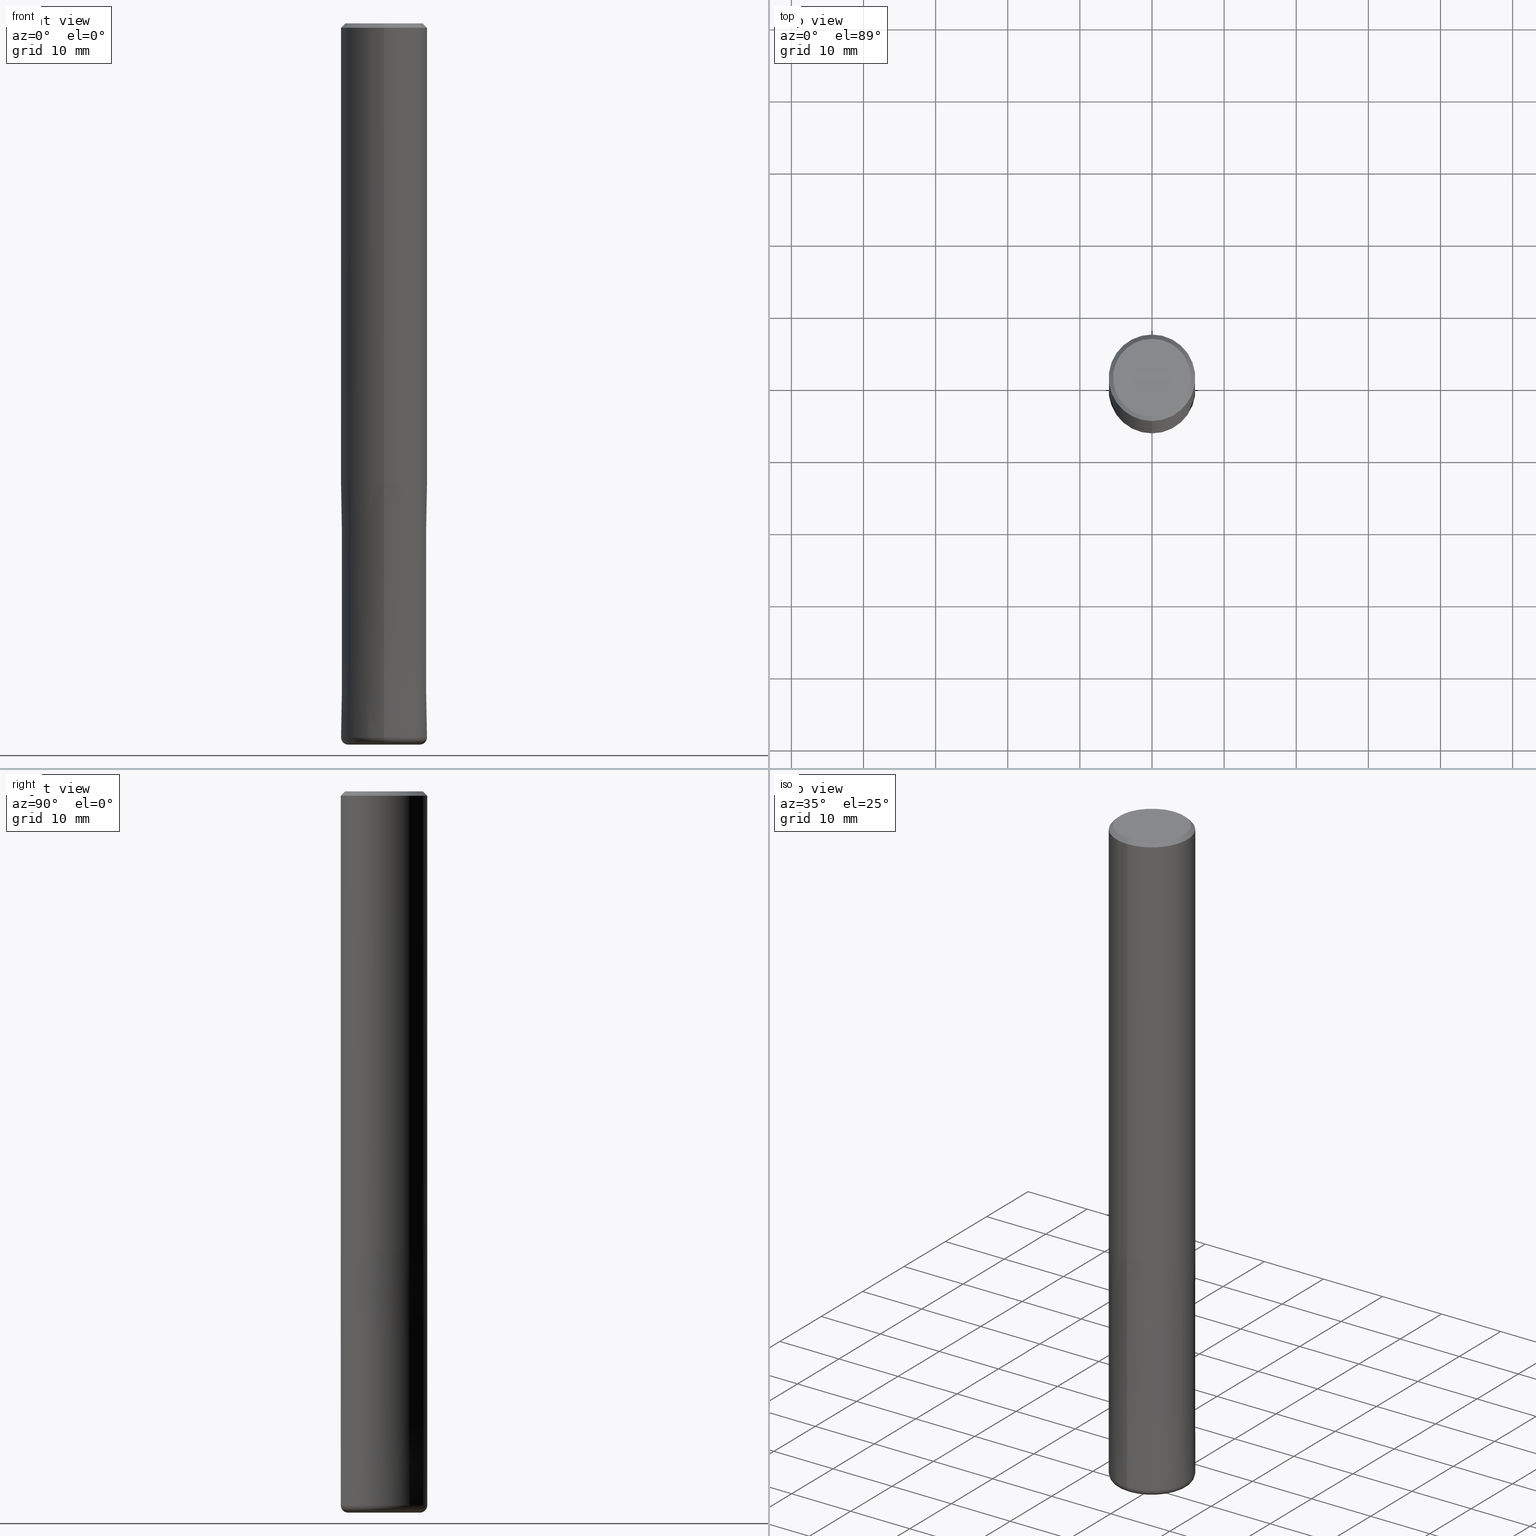
[diagram: canonical four-view strip — front | top / right | iso, engineering-drawing reading convention]
A machine part, canonical four-view strip (front | top / right | iso — engineering-drawing reading convention). The complete STEP part file that produces these views, byte-faithful:
ISO-10303-21;
HEADER;
FILE_DESCRIPTION(('no description'),'unknown implementation level');
FILE_NAME('CXRS5120-10-3600-Huellk.stp','  ',('CIMSOURCE GmbH'),('CADClick - KiM GmbH - www.kimweb.de'),'unknown preprocess','ACIS','unknown authorization');
FILE_SCHEMA(('automotive_design'));
ENDSEC;
DATA;
#1=MECHANICAL_DESIGN_GEOMETRIC_PRESENTATION_REPRESENTATION(' ',(#14,#15,#16,#17,#18,#19,#20,#21,#22,#23,#24,#25,#26,#27,#28,#29,#30,#31,#32,#33,#34,#35,#36,#37,#38,#39,#40,#41,#42,#43,#44,#45,#46,#47,#48,#49,#50,#51,#52,#53,#54,#55,#56,#57,#58,#59,#60,#61,#62,#63,#64,#65,#66,#67,#68,#69,#70,#71,#72,#73,#74,#75,#76,#77,#78,#79,#80,#81,#82,#83,#84),#10);
#2=PRODUCT_DEFINITION_CONTEXT('',#85,'design');
#3=APPLICATION_PROTOCOL_DEFINITION('INTERNATIONAL STANDARD','automotive_design',1994,#85);
#4=PRODUCT_CATEGORY_RELATIONSHIP('NONE','NONE',#86,#87);
#5=SHAPE_DEFINITION_REPRESENTATION(#88,#89);
#6=PRODUCT_DEFINITION_CONTEXT('',#90,'design');
#7=APPLICATION_PROTOCOL_DEFINITION('INTERNATIONAL STANDARD','automotive_design',1994,#90);
#8=PRODUCT_CATEGORY_RELATIONSHIP('NONE','NONE',#91,#92);
#9=SHAPE_DEFINITION_REPRESENTATION(#93,#94);
#10= (GEOMETRIC_REPRESENTATION_CONTEXT(3)GLOBAL_UNCERTAINTY_ASSIGNED_CONTEXT((#97))GLOBAL_UNIT_ASSIGNED_CONTEXT((#99,#100,#101))REPRESENTATION_CONTEXT('NONE','WORKSPACE'));
#14=STYLED_ITEM('',(#103),#104);
#15=STYLED_ITEM('',(#105),#106);
#16=STYLED_ITEM('',(#107),#108);
#17=STYLED_ITEM('',(#109),#110);
#18=STYLED_ITEM('',(#111),#112);
#19=STYLED_ITEM('',(#113),#114);
#20=STYLED_ITEM('',(#115),#116);
#21=STYLED_ITEM('',(#117),#118);
#22=STYLED_ITEM('',(#119),#120);
#23=STYLED_ITEM('',(#121),#122);
#24=STYLED_ITEM('',(#123),#124);
#25=STYLED_ITEM('',(#125),#126);
#26=STYLED_ITEM('',(#127),#128);
#27=STYLED_ITEM('',(#129),#130);
#28=STYLED_ITEM('',(#131),#132);
#29=STYLED_ITEM('',(#133),#134);
#30=STYLED_ITEM('',(#135),#136);
#31=STYLED_ITEM('',(#137),#138);
#32=STYLED_ITEM('',(#139),#140);
#33=STYLED_ITEM('',(#141),#142);
#34=STYLED_ITEM('',(#143),#144);
#35=STYLED_ITEM('',(#145),#146);
#36=STYLED_ITEM('',(#147),#148);
#37=STYLED_ITEM('',(#149),#150);
#38=STYLED_ITEM('',(#151),#152);
#39=STYLED_ITEM('',(#153),#154);
#40=STYLED_ITEM('',(#155),#156);
#41=STYLED_ITEM('',(#157),#158);
#42=STYLED_ITEM('',(#159),#160);
#43=STYLED_ITEM('',(#161),#162);
#44=STYLED_ITEM('',(#163),#164);
#45=STYLED_ITEM('',(#165),#166);
#46=STYLED_ITEM('',(#167),#168);
#47=STYLED_ITEM('',(#169),#170);
#48=STYLED_ITEM('',(#171),#172);
#49=STYLED_ITEM('',(#173),#174);
#50=STYLED_ITEM('',(#175),#176);
#51=STYLED_ITEM('',(#177),#178);
#52=STYLED_ITEM('',(#179),#180);
#53=STYLED_ITEM('',(#181),#182);
#54=STYLED_ITEM('',(#183),#184);
#55=STYLED_ITEM('',(#185),#186);
#56=STYLED_ITEM('',(#187),#188);
#57=STYLED_ITEM('',(#189),#190);
#58=STYLED_ITEM('',(#191),#192);
#59=STYLED_ITEM('',(#193),#194);
#60=STYLED_ITEM('',(#195),#196);
#61=STYLED_ITEM('',(#197),#198);
#62=STYLED_ITEM('',(#199),#200);
#63=STYLED_ITEM('',(#201),#202);
#64=STYLED_ITEM('',(#203),#204);
#65=STYLED_ITEM('',(#205),#206);
#66=STYLED_ITEM('',(#207),#208);
#67=STYLED_ITEM('',(#209),#210);
#68=STYLED_ITEM('',(#211),#212);
#69=STYLED_ITEM('',(#213),#214);
#70=STYLED_ITEM('',(#215),#216);
#71=STYLED_ITEM('',(#217),#218);
#72=STYLED_ITEM('',(#219),#220);
#73=STYLED_ITEM('',(#221),#222);
#74=STYLED_ITEM('',(#223),#224);
#75=STYLED_ITEM('',(#225),#226);
#76=STYLED_ITEM('',(#227),#228);
#77=STYLED_ITEM('',(#229),#230);
#78=STYLED_ITEM('',(#231),#232);
#79=STYLED_ITEM('',(#233),#234);
#80=STYLED_ITEM('',(#235),#236);
#81=STYLED_ITEM('',(#237),#238);
#82=STYLED_ITEM('',(#239),#240);
#83=STYLED_ITEM('',(#241),#242);
#84=STYLED_ITEM('',(#243),#244);
#85=APPLICATION_CONTEXT(' ');
#86=PRODUCT_CATEGORY('part','NONE');
#87=PRODUCT_RELATED_PRODUCT_CATEGORY('detail',' ',(#245));
#88=PRODUCT_DEFINITION_SHAPE('NONE','NONE',#246);
#89=ADVANCED_BREP_SHAPE_REPRESENTATION('1',(#126,#247),#10);
#90=APPLICATION_CONTEXT(' ');
#91=PRODUCT_CATEGORY('part','NONE');
#92=PRODUCT_RELATED_PRODUCT_CATEGORY('detail',' ',(#248));
#93=PRODUCT_DEFINITION_SHAPE('NONE','NONE',#249);
#94=ADVANCED_BREP_SHAPE_REPRESENTATION('2',(#170,#250),#10);
#97=UNCERTAINTY_MEASURE_WITH_UNIT(LENGTH_MEASURE(1.0E-006),#99,'','');
#99= (CONVERSION_BASED_UNIT('MILLIMETRE',#253)LENGTH_UNIT()NAMED_UNIT(#256));
#100= (NAMED_UNIT(#258)PLANE_ANGLE_UNIT()SI_UNIT($,.RADIAN.));
#101= (NAMED_UNIT(#258)SOLID_ANGLE_UNIT()SI_UNIT($,.STERADIAN.));
#103=PRESENTATION_STYLE_ASSIGNMENT((#264));
#104=EDGE_CURVE('',#108,#152,#265,.T.);
#105=PRESENTATION_STYLE_ASSIGNMENT((#266));
#106=ADVANCED_FACE('',(#267),#268,.T.);
#107=PRESENTATION_STYLE_ASSIGNMENT((#269));
#108=VERTEX_POINT('',#270);
#109=PRESENTATION_STYLE_ASSIGNMENT((#271));
#110=ADVANCED_FACE('',(#272),#273,.T.);
#111=PRESENTATION_STYLE_ASSIGNMENT((#274));
#112=ADVANCED_FACE('',(#275),#276,.T.);
#113=PRESENTATION_STYLE_ASSIGNMENT((#277));
#114=EDGE_CURVE('',#116,#132,#278,.T.);
#115=PRESENTATION_STYLE_ASSIGNMENT((#279));
#116=VERTEX_POINT('',#280);
#117=PRESENTATION_STYLE_ASSIGNMENT((#281));
#118=ADVANCED_FACE('',(#282),#283,.T.);
#119=PRESENTATION_STYLE_ASSIGNMENT((#284));
#120=EDGE_CURVE('',#154,#194,#285,.T.);
#121=PRESENTATION_STYLE_ASSIGNMENT((#286));
#122=ADVANCED_FACE('',(#287),#288,.T.);
#123=PRESENTATION_STYLE_ASSIGNMENT((#289));
#124=ADVANCED_FACE('',(#290),#291,.F.);
#125=PRESENTATION_STYLE_ASSIGNMENT((#292));
#126=MANIFOLD_SOLID_BREP('1',#293);
#127=PRESENTATION_STYLE_ASSIGNMENT((#294));
#128=VERTEX_POINT('',#295);
#129=PRESENTATION_STYLE_ASSIGNMENT((#296));
#130=VERTEX_POINT('',#297);
#131=PRESENTATION_STYLE_ASSIGNMENT((#298));
#132=VERTEX_POINT('',#299);
#133=PRESENTATION_STYLE_ASSIGNMENT((#300));
#134=EDGE_CURVE('',#192,#132,#301,.T.);
#135=PRESENTATION_STYLE_ASSIGNMENT((#302));
#136=ADVANCED_FACE('',(#303),#304,.T.);
#137=PRESENTATION_STYLE_ASSIGNMENT((#305));
#138=EDGE_CURVE('',#184,#210,#306,.T.);
#139=PRESENTATION_STYLE_ASSIGNMENT((#307));
#140=VERTEX_POINT('',#308);
#141=PRESENTATION_STYLE_ASSIGNMENT((#309));
#142=ADVANCED_FACE('',(#310),#311,.T.);
#143=PRESENTATION_STYLE_ASSIGNMENT((#312));
#144=EDGE_CURVE('',#218,#236,#313,.T.);
#145=PRESENTATION_STYLE_ASSIGNMENT((#314));
#146=VERTEX_POINT('',#315);
#147=PRESENTATION_STYLE_ASSIGNMENT((#316));
#148=EDGE_CURVE('',#154,#236,#317,.T.);
#149=PRESENTATION_STYLE_ASSIGNMENT((#318));
#150=EDGE_CURVE('',#178,#212,#319,.T.);
#151=PRESENTATION_STYLE_ASSIGNMENT((#320));
#152=VERTEX_POINT('',#321);
#153=PRESENTATION_STYLE_ASSIGNMENT((#322));
#154=VERTEX_POINT('',#323);
#155=PRESENTATION_STYLE_ASSIGNMENT((#324));
#156=EDGE_CURVE('',#130,#178,#325,.T.);
#157=PRESENTATION_STYLE_ASSIGNMENT((#326));
#158=ADVANCED_FACE('',(#327),#328,.T.);
#159=PRESENTATION_STYLE_ASSIGNMENT((#329));
#160=EDGE_CURVE('',#132,#116,#330,.T.);
#161=PRESENTATION_STYLE_ASSIGNMENT((#331));
#162=ADVANCED_FACE('',(#332,#333),#334,.T.);
#163=PRESENTATION_STYLE_ASSIGNMENT((#335));
#164=EDGE_CURVE('',#230,#130,#336,.T.);
#165=PRESENTATION_STYLE_ASSIGNMENT((#337));
#166=EDGE_CURVE('',#152,#108,#338,.T.);
#167=PRESENTATION_STYLE_ASSIGNMENT((#339));
#168=EDGE_CURVE('',#178,#130,#340,.T.);
#169=PRESENTATION_STYLE_ASSIGNMENT((#341));
#170=MANIFOLD_SOLID_BREP('2',#342);
#171=PRESENTATION_STYLE_ASSIGNMENT((#343));
#172=EDGE_CURVE('',#140,#108,#344,.T.);
#173=PRESENTATION_STYLE_ASSIGNMENT((#345));
#174=ADVANCED_FACE('',(#346),#347,.T.);
#175=PRESENTATION_STYLE_ASSIGNMENT((#348));
#176=EDGE_CURVE('',#236,#184,#349,.T.);
#177=PRESENTATION_STYLE_ASSIGNMENT((#350));
#178=VERTEX_POINT('',#351);
#179=PRESENTATION_STYLE_ASSIGNMENT((#352));
#180=EDGE_CURVE('',#218,#194,#353,.T.);
#181=PRESENTATION_STYLE_ASSIGNMENT((#354));
#182=ADVANCED_FACE('',(#355,#356),#357,.T.);
#183=PRESENTATION_STYLE_ASSIGNMENT((#358));
#184=VERTEX_POINT('',#359);
#185=PRESENTATION_STYLE_ASSIGNMENT((#360));
#186=ADVANCED_FACE('',(#361),#362,.T.);
#187=PRESENTATION_STYLE_ASSIGNMENT((#363));
#188=EDGE_CURVE('',#140,#146,#364,.T.);
#189=PRESENTATION_STYLE_ASSIGNMENT((#365));
#190=VERTEX_POINT('',#366);
#191=PRESENTATION_STYLE_ASSIGNMENT((#367));
#192=VERTEX_POINT('',#368);
#193=PRESENTATION_STYLE_ASSIGNMENT((#369));
#194=VERTEX_POINT('',#370);
#195=PRESENTATION_STYLE_ASSIGNMENT((#371));
#196=EDGE_CURVE('',#190,#128,#372,.T.);
#197=PRESENTATION_STYLE_ASSIGNMENT((#373));
#198=ADVANCED_FACE('',(#374),#375,.T.);
#199=PRESENTATION_STYLE_ASSIGNMENT((#376));
#200=EDGE_CURVE('',#230,#212,#377,.T.);
#201=PRESENTATION_STYLE_ASSIGNMENT((#378));
#202=EDGE_CURVE('',#152,#128,#379,.T.);
#203=PRESENTATION_STYLE_ASSIGNMENT((#380));
#204=EDGE_CURVE('',#210,#218,#381,.T.);
#205=PRESENTATION_STYLE_ASSIGNMENT((#382));
#206=ADVANCED_FACE('',(#383),#384,.F.);
#207=PRESENTATION_STYLE_ASSIGNMENT((#385));
#208=ADVANCED_FACE('',(#386,#387),#388,.T.);
#209=PRESENTATION_STYLE_ASSIGNMENT((#389));
#210=VERTEX_POINT('',#390);
#211=PRESENTATION_STYLE_ASSIGNMENT((#391));
#212=VERTEX_POINT('',#392);
#213=PRESENTATION_STYLE_ASSIGNMENT((#393));
#214=EDGE_CURVE('',#146,#190,#394,.T.);
#215=PRESENTATION_STYLE_ASSIGNMENT((#395));
#216=ADVANCED_FACE('',(#396),#397,.T.);
#217=PRESENTATION_STYLE_ASSIGNMENT((#398));
#218=VERTEX_POINT('',#399);
#219=PRESENTATION_STYLE_ASSIGNMENT((#400));
#220=EDGE_CURVE('',#128,#140,#401,.T.);
#221=PRESENTATION_STYLE_ASSIGNMENT((#402));
#222=EDGE_CURVE('',#224,#192,#403,.T.);
#223=PRESENTATION_STYLE_ASSIGNMENT((#404));
#224=VERTEX_POINT('',#405);
#225=PRESENTATION_STYLE_ASSIGNMENT((#406));
#226=EDGE_CURVE('',#116,#224,#407,.T.);
#227=PRESENTATION_STYLE_ASSIGNMENT((#408));
#228=EDGE_CURVE('',#236,#218,#409,.T.);
#229=PRESENTATION_STYLE_ASSIGNMENT((#410));
#230=VERTEX_POINT('',#411);
#231=PRESENTATION_STYLE_ASSIGNMENT((#412));
#232=EDGE_CURVE('',#192,#224,#413,.T.);
#233=PRESENTATION_STYLE_ASSIGNMENT((#414));
#234=EDGE_CURVE('',#140,#128,#415,.T.);
#235=PRESENTATION_STYLE_ASSIGNMENT((#416));
#236=VERTEX_POINT('',#417);
#237=PRESENTATION_STYLE_ASSIGNMENT((#418));
#238=EDGE_CURVE('',#194,#154,#419,.T.);
#239=PRESENTATION_STYLE_ASSIGNMENT((#420));
#240=EDGE_CURVE('',#190,#146,#421,.T.);
#241=PRESENTATION_STYLE_ASSIGNMENT((#422));
#242=EDGE_CURVE('',#210,#184,#423,.T.);
#243=PRESENTATION_STYLE_ASSIGNMENT((#424));
#244=EDGE_CURVE('',#212,#230,#425,.T.);
#245=PRODUCT('1','1','PART-1-DESC',(#426));
#246=PRODUCT_DEFINITION('NONE','NONE',#427,#2);
#247=AXIS2_PLACEMENT_3D('',#428,#429,#430);
#248=PRODUCT('2','2','PART-2-DESC',(#431));
#249=PRODUCT_DEFINITION('NONE','NONE',#432,#6);
#250=AXIS2_PLACEMENT_3D('',#433,#434,#435);
#253=LENGTH_MEASURE_WITH_UNIT(LENGTH_MEASURE(1.0),#436);
#256=DIMENSIONAL_EXPONENTS(1.0,0.0,0.0,0.0,0.0,0.0,0.0);
#258=DIMENSIONAL_EXPONENTS(0.0,0.0,0.0,0.0,0.0,0.0,0.0);
#264=CURVE_STYLE('',#437,POSITIVE_LENGTH_MEASURE(1.0E-006),#438);
#265=CIRCLE('',#439,5.9999);
#266=SURFACE_STYLE_USAGE(.BOTH.,#440);
#267=FACE_OUTER_BOUND('',#441,.T.);
#268=CONICAL_SURFACE('',#442,5.7,0.785398163397447);
#269=POINT_STYLE(' ',#443,POSITIVE_LENGTH_MEASURE(1.0E-006),#444);
#270=CARTESIAN_POINT('',(7.34751566229888E-016,-5.9999,-64.0));
#271=SURFACE_STYLE_USAGE(.BOTH.,#445);
#272=FACE_OUTER_BOUND('',#446,.T.);
#273=CONICAL_SURFACE('',#447,5.7,0.785398163397447);
#274=SURFACE_STYLE_USAGE(.BOTH.,#448);
#275=FACE_OUTER_BOUND('',#449,.T.);
#276=TOROIDAL_SURFACE('',#450,4.99999999999999,1.00000000000001);
#277=CURVE_STYLE('',#451,POSITIVE_LENGTH_MEASURE(1.0E-006),#452);
#278=CIRCLE('',#453,2.7);
#279=POINT_STYLE(' ',#454,POSITIVE_LENGTH_MEASURE(1.0E-006),#455);
#280=CARTESIAN_POINT('',(0.0,2.7,-64.0));
#281=SURFACE_STYLE_USAGE(.BOTH.,#456);
#282=FACE_OUTER_BOUND('',#457,.T.);
#283=PLANE('',#458);
#284=CURVE_STYLE('',#459,POSITIVE_LENGTH_MEASURE(1.0E-006),#460);
#285=CIRCLE('',#461,5.4);
#286=SURFACE_STYLE_USAGE(.BOTH.,#462);
#287=FACE_OUTER_BOUND('',#463,.T.);
#288=TOROIDAL_SURFACE('',#464,4.99999999999999,1.00000000000001);
#289=SURFACE_STYLE_USAGE(.BOTH.,#465);
#290=FACE_OUTER_BOUND('',#466,.T.);
#291=CYLINDRICAL_SURFACE('',#467,2.7);
#292=SURFACE_STYLE_USAGE(.BOTH.,#468);
#293=CLOSED_SHELL('',(#136,#216,#106,#162,#118,#110,#198,#174,#186));
#294=POINT_STYLE(' ',#469,POSITIVE_LENGTH_MEASURE(1.0E-006),#470);
#295=CARTESIAN_POINT('',(0.0,6.0,-99.0));
#296=POINT_STYLE(' ',#471,POSITIVE_LENGTH_MEASURE(1.0E-006),#472);
#297=CARTESIAN_POINT('',(0.0,2.7,-99.76));
#298=POINT_STYLE(' ',#473,POSITIVE_LENGTH_MEASURE(1.0E-006),#474);
#299=CARTESIAN_POINT('',(3.30643715532042E-016,-2.7,-64.0));
#300=CURVE_STYLE('',#475,POSITIVE_LENGTH_MEASURE(1.0E-006),#476);
#301=LINE('',#477,#478);
#302=SURFACE_STYLE_USAGE(.BOTH.,#479);
#303=FACE_OUTER_BOUND('',#480,.T.);
#304=CYLINDRICAL_SURFACE('',#481,2.7);
#305=CURVE_STYLE('',#482,POSITIVE_LENGTH_MEASURE(1.0E-006),#483);
#306=CIRCLE('',#484,6.0);
#307=POINT_STYLE(' ',#485,POSITIVE_LENGTH_MEASURE(1.0E-006),#486);
#308=CARTESIAN_POINT('',(7.34763812293427E-016,-6.0,-99.0));
#309=SURFACE_STYLE_USAGE(.BOTH.,#487);
#310=FACE_OUTER_BOUND('',#488,.T.);
#311=CONICAL_SURFACE('',#489,5.99995,2.85714285712842E-006);
#312=CURVE_STYLE('',#490,POSITIVE_LENGTH_MEASURE(1.0E-006),#491);
#313=CIRCLE('',#492,6.0);
#314=POINT_STYLE(' ',#493,POSITIVE_LENGTH_MEASURE(1.0E-006),#494);
#315=CARTESIAN_POINT('',(6.12303176911189E-016,-5.0,-100.0));
#316=CURVE_STYLE('',#495,POSITIVE_LENGTH_MEASURE(1.0E-006),#496);
#317=LINE('',#497,#498);
#318=CURVE_STYLE('',#499,POSITIVE_LENGTH_MEASURE(1.0E-006),#500);
#319=LINE('',#501,#502);
#320=POINT_STYLE(' ',#503,POSITIVE_LENGTH_MEASURE(1.0E-006),#504);
#321=CARTESIAN_POINT('',(0.0,5.9999,-64.0));
#322=POINT_STYLE(' ',#505,POSITIVE_LENGTH_MEASURE(1.0E-006),#506);
#323=CARTESIAN_POINT('',(0.0,5.4,0.0));
#324=CURVE_STYLE('',#507,POSITIVE_LENGTH_MEASURE(1.0E-006),#508);
#325=CIRCLE('',#509,2.7);
#326=SURFACE_STYLE_USAGE(.BOTH.,#510);
#327=FACE_OUTER_BOUND('',#511,.T.);
#328=CONICAL_SURFACE('',#512,5.99995,2.85714285712842E-006);
#329=CURVE_STYLE('',#513,POSITIVE_LENGTH_MEASURE(1.0E-006),#514);
#330=CIRCLE('',#515,2.7);
#331=SURFACE_STYLE_USAGE(.BOTH.,#516);
#332=FACE_OUTER_BOUND('',#517,.T.);
#333=FACE_BOUND('',#518,.T.);
#334=PLANE('',#519);
#335=CURVE_STYLE('',#520,POSITIVE_LENGTH_MEASURE(1.0E-006),#521);
#336=LINE('',#522,#523);
#337=CURVE_STYLE('',#524,POSITIVE_LENGTH_MEASURE(1.0E-006),#525);
#338=CIRCLE('',#526,5.9999);
#339=CURVE_STYLE('',#527,POSITIVE_LENGTH_MEASURE(1.0E-006),#528);
#340=CIRCLE('',#529,2.7);
#341=SURFACE_STYLE_USAGE(.BOTH.,#530);
#342=CLOSED_SHELL('',(#206,#112,#142,#208,#158,#122,#182,#124));
#343=CURVE_STYLE('',#531,POSITIVE_LENGTH_MEASURE(1.0E-006),#532);
#344=LINE('',#533,#534);
#345=SURFACE_STYLE_USAGE(.BOTH.,#535);
#346=FACE_OUTER_BOUND('',#536,.T.);
#347=CYLINDRICAL_SURFACE('',#537,2.7);
#348=CURVE_STYLE('',#538,POSITIVE_LENGTH_MEASURE(1.0E-006),#539);
#349=LINE('',#540,#541);
#350=POINT_STYLE(' ',#542,POSITIVE_LENGTH_MEASURE(1.0E-006),#543);
#351=CARTESIAN_POINT('',(3.30643715532042E-016,-2.7,-99.76));
#352=CURVE_STYLE('',#544,POSITIVE_LENGTH_MEASURE(1.0E-006),#545);
#353=LINE('',#546,#547);
#354=SURFACE_STYLE_USAGE(.BOTH.,#548);
#355=FACE_BOUND('',#549,.T.);
#356=FACE_OUTER_BOUND('',#550,.T.);
#357=PLANE('',#551);
#358=POINT_STYLE(' ',#552,POSITIVE_LENGTH_MEASURE(1.0E-006),#553);
#359=CARTESIAN_POINT('',(0.0,6.0,-64.0));
#360=SURFACE_STYLE_USAGE(.BOTH.,#554);
#361=FACE_OUTER_BOUND('',#555,.T.);
#362=PLANE('',#556);
#363=CURVE_STYLE('',#557,POSITIVE_LENGTH_MEASURE(1.0E-006),#558);
#364=CIRCLE('',#559,1.00000000000001);
#365=POINT_STYLE(' ',#560,POSITIVE_LENGTH_MEASURE(1.0E-006),#561);
#366=CARTESIAN_POINT('',(0.0,5.0,-100.0));
#367=POINT_STYLE(' ',#562,POSITIVE_LENGTH_MEASURE(1.0E-006),#563);
#368=CARTESIAN_POINT('',(3.30643715532042E-016,-2.7,-100.0));
#369=POINT_STYLE(' ',#564,POSITIVE_LENGTH_MEASURE(1.0E-006),#565);
#370=CARTESIAN_POINT('',(6.61287431064084E-016,-5.4,0.0));
#371=CURVE_STYLE('',#566,POSITIVE_LENGTH_MEASURE(1.0E-006),#567);
#372=CIRCLE('',#568,1.00000000000001);
#373=SURFACE_STYLE_USAGE(.BOTH.,#569);
#374=FACE_OUTER_BOUND('',#570,.T.);
#375=CYLINDRICAL_SURFACE('',#571,6.0);
#376=CURVE_STYLE('',#572,POSITIVE_LENGTH_MEASURE(1.0E-006),#573);
#377=CIRCLE('',#574,2.7);
#378=CURVE_STYLE('',#575,POSITIVE_LENGTH_MEASURE(1.0E-006),#576);
#379=LINE('',#577,#578);
#380=CURVE_STYLE('',#579,POSITIVE_LENGTH_MEASURE(1.0E-006),#580);
#381=LINE('',#581,#582);
#382=SURFACE_STYLE_USAGE(.BOTH.,#583);
#383=FACE_OUTER_BOUND('',#584,.T.);
#384=CYLINDRICAL_SURFACE('',#585,2.7);
#385=SURFACE_STYLE_USAGE(.BOTH.,#586);
#386=FACE_OUTER_BOUND('',#587,.T.);
#387=FACE_BOUND('',#588,.T.);
#388=PLANE('',#589);
#389=POINT_STYLE(' ',#590,POSITIVE_LENGTH_MEASURE(1.0E-006),#591);
#390=CARTESIAN_POINT('',(7.34763812293426E-016,-6.0,-64.0));
#391=POINT_STYLE(' ',#592,POSITIVE_LENGTH_MEASURE(1.0E-006),#593);
#392=CARTESIAN_POINT('',(3.30643715532042E-016,-2.7,-64.0));
#393=CURVE_STYLE('',#594,POSITIVE_LENGTH_MEASURE(1.0E-006),#595);
#394=CIRCLE('',#596,5.0);
#395=SURFACE_STYLE_USAGE(.BOTH.,#597);
#396=FACE_OUTER_BOUND('',#598,.T.);
#397=CYLINDRICAL_SURFACE('',#599,6.0);
#398=POINT_STYLE(' ',#600,POSITIVE_LENGTH_MEASURE(1.0E-006),#601);
#399=CARTESIAN_POINT('',(7.34763812293426E-016,-6.0,-0.600000000000001));
#400=CURVE_STYLE('',#602,POSITIVE_LENGTH_MEASURE(1.0E-006),#603);
#401=CIRCLE('',#604,6.0);
#402=CURVE_STYLE('',#605,POSITIVE_LENGTH_MEASURE(1.0E-006),#606);
#403=CIRCLE('',#607,2.7);
#404=POINT_STYLE(' ',#608,POSITIVE_LENGTH_MEASURE(1.0E-006),#609);
#405=CARTESIAN_POINT('',(0.0,2.7,-100.0));
#406=CURVE_STYLE('',#610,POSITIVE_LENGTH_MEASURE(1.0E-006),#611);
#407=LINE('',#612,#613);
#408=CURVE_STYLE('',#614,POSITIVE_LENGTH_MEASURE(1.0E-006),#615);
#409=CIRCLE('',#616,6.0);
#410=POINT_STYLE(' ',#617,POSITIVE_LENGTH_MEASURE(1.0E-006),#618);
#411=CARTESIAN_POINT('',(0.0,2.7,-64.0));
#412=CURVE_STYLE('',#619,POSITIVE_LENGTH_MEASURE(1.0E-006),#620);
#413=CIRCLE('',#621,2.7);
#414=CURVE_STYLE('',#622,POSITIVE_LENGTH_MEASURE(1.0E-006),#623);
#415=CIRCLE('',#624,6.0);
#416=POINT_STYLE(' ',#625,POSITIVE_LENGTH_MEASURE(1.0E-006),#626);
#417=CARTESIAN_POINT('',(0.0,6.0,-0.600000000000001));
#418=CURVE_STYLE('',#627,POSITIVE_LENGTH_MEASURE(1.0E-006),#628);
#419=CIRCLE('',#629,5.4);
#420=CURVE_STYLE('',#630,POSITIVE_LENGTH_MEASURE(1.0E-006),#631);
#421=CIRCLE('',#632,5.0);
#422=CURVE_STYLE('',#633,POSITIVE_LENGTH_MEASURE(1.0E-006),#634);
#423=CIRCLE('',#635,6.0);
#424=CURVE_STYLE('',#636,POSITIVE_LENGTH_MEASURE(1.0E-006),#637);
#425=CIRCLE('',#638,2.7);
#426=PRODUCT_CONTEXT('',#85,'mechanical');
#427=PRODUCT_DEFINITION_FORMATION_WITH_SPECIFIED_SOURCE(' ','NONE',#245,.NOT_KNOWN.);
#428=CARTESIAN_POINT('',(0.0,0.0,0.0));
#429=DIRECTION('',(0.0,0.0,1.0));
#430=DIRECTION('',(1.0,0.0,0.0));
#431=PRODUCT_CONTEXT('',#90,'mechanical');
#432=PRODUCT_DEFINITION_FORMATION_WITH_SPECIFIED_SOURCE(' ','NONE',#248,.NOT_KNOWN.);
#433=CARTESIAN_POINT('',(0.0,0.0,0.0));
#434=DIRECTION('',(0.0,0.0,1.0));
#435=DIRECTION('',(1.0,0.0,0.0));
#436= (NAMED_UNIT(#256)LENGTH_UNIT()SI_UNIT(.MILLI.,.METRE.));
#437=DRAUGHTING_PRE_DEFINED_CURVE_FONT('continuous');
#438=COLOUR_RGB('',0.800000011920929,0.800000011920929,0.800000011920929);
#439=AXIS2_PLACEMENT_3D('',#640,#641,#642);
#440=SURFACE_SIDE_STYLE('',(#643));
#441=EDGE_LOOP('',(#644,#645,#646,#647));
#442=AXIS2_PLACEMENT_3D('',#648,#649,#650);
#443=PRE_DEFINED_MARKER('');
#444=COLOUR_RGB('',0.800000011920929,0.800000011920929,0.800000011920929);
#445=SURFACE_SIDE_STYLE('',(#651));
#446=EDGE_LOOP('',(#652,#653,#654,#655));
#447=AXIS2_PLACEMENT_3D('',#656,#657,#658);
#448=SURFACE_SIDE_STYLE('',(#659));
#449=EDGE_LOOP('',(#660,#661,#662,#663));
#450=AXIS2_PLACEMENT_3D('',#664,#665,#666);
#451=DRAUGHTING_PRE_DEFINED_CURVE_FONT('continuous');
#452=COLOUR_RGB('',0.800000011920929,0.800000011920929,0.800000011920929);
#453=AXIS2_PLACEMENT_3D('',#667,#668,#669);
#454=PRE_DEFINED_MARKER('');
#455=COLOUR_RGB('',0.800000011920929,0.800000011920929,0.800000011920929);
#456=SURFACE_SIDE_STYLE('',(#670));
#457=EDGE_LOOP('',(#671,#672));
#458=AXIS2_PLACEMENT_3D('',#673,#674,#675);
#459=DRAUGHTING_PRE_DEFINED_CURVE_FONT('continuous');
#460=COLOUR_RGB('',0.498039215803146,0.498039215803146,0.498039215803146);
#461=AXIS2_PLACEMENT_3D('',#676,#677,#678);
#462=SURFACE_SIDE_STYLE('',(#679));
#463=EDGE_LOOP('',(#680,#681,#682,#683));
#464=AXIS2_PLACEMENT_3D('',#684,#685,#686);
#465=SURFACE_SIDE_STYLE('',(#687));
#466=EDGE_LOOP('',(#688,#689,#690,#691));
#467=AXIS2_PLACEMENT_3D('',#692,#693,#694);
#468=SURFACE_SIDE_STYLE('',(#695));
#469=PRE_DEFINED_MARKER('');
#470=COLOUR_RGB('',0.800000011920929,0.800000011920929,0.800000011920929);
#471=PRE_DEFINED_MARKER('');
#472=COLOUR_RGB('',0.498039215803146,0.498039215803146,0.498039215803146);
#473=PRE_DEFINED_MARKER('');
#474=COLOUR_RGB('',0.800000011920929,0.800000011920929,0.800000011920929);
#475=DRAUGHTING_PRE_DEFINED_CURVE_FONT('continuous');
#476=COLOUR_RGB('',0.800000011920929,0.800000011920929,0.800000011920929);
#477=CARTESIAN_POINT('',(3.30643715532042E-016,-2.7,-82.0));
#478=VECTOR('',#696,1.0);
#479=SURFACE_SIDE_STYLE('',(#697));
#480=EDGE_LOOP('',(#698,#699,#700,#701));
#481=AXIS2_PLACEMENT_3D('',#702,#703,#704);
#482=DRAUGHTING_PRE_DEFINED_CURVE_FONT('continuous');
#483=COLOUR_RGB('',0.498039215803146,0.498039215803146,0.498039215803146);
#484=AXIS2_PLACEMENT_3D('',#705,#706,#707);
#485=PRE_DEFINED_MARKER('');
#486=COLOUR_RGB('',0.800000011920929,0.800000011920929,0.800000011920929);
#487=SURFACE_SIDE_STYLE('',(#708));
#488=EDGE_LOOP('',(#709,#710,#711,#712));
#489=AXIS2_PLACEMENT_3D('',#713,#714,#715);
#490=DRAUGHTING_PRE_DEFINED_CURVE_FONT('continuous');
#491=COLOUR_RGB('',0.498039215803146,0.498039215803146,0.498039215803146);
#492=AXIS2_PLACEMENT_3D('',#716,#717,#718);
#493=PRE_DEFINED_MARKER('');
#494=COLOUR_RGB('',0.800000011920929,0.800000011920929,0.800000011920929);
#495=DRAUGHTING_PRE_DEFINED_CURVE_FONT('continuous');
#496=COLOUR_RGB('',0.498039215803146,0.498039215803146,0.498039215803146);
#497=CARTESIAN_POINT('',(-6.98025621678755E-016,5.7,-0.300000000000004));
#498=VECTOR('',#719,1.0);
#499=DRAUGHTING_PRE_DEFINED_CURVE_FONT('continuous');
#500=COLOUR_RGB('',0.498039215803146,0.498039215803146,0.498039215803146);
#501=CARTESIAN_POINT('',(3.30643715532042E-016,-2.7,-81.88));
#502=VECTOR('',#720,1.0);
#503=PRE_DEFINED_MARKER('');
#504=COLOUR_RGB('',0.800000011920929,0.800000011920929,0.800000011920929);
#505=PRE_DEFINED_MARKER('');
#506=COLOUR_RGB('',0.498039215803146,0.498039215803146,0.498039215803146);
#507=DRAUGHTING_PRE_DEFINED_CURVE_FONT('continuous');
#508=COLOUR_RGB('',0.498039215803146,0.498039215803146,0.498039215803146);
#509=AXIS2_PLACEMENT_3D('',#721,#722,#723);
#510=SURFACE_SIDE_STYLE('',(#724));
#511=EDGE_LOOP('',(#725,#726,#727,#728));
#512=AXIS2_PLACEMENT_3D('',#729,#730,#731);
#513=DRAUGHTING_PRE_DEFINED_CURVE_FONT('continuous');
#514=COLOUR_RGB('',0.800000011920929,0.800000011920929,0.800000011920929);
#515=AXIS2_PLACEMENT_3D('',#732,#733,#734);
#516=SURFACE_SIDE_STYLE('',(#735));
#517=EDGE_LOOP('',(#736,#737));
#518=EDGE_LOOP('',(#738,#739));
#519=AXIS2_PLACEMENT_3D('',#740,#741,#742);
#520=DRAUGHTING_PRE_DEFINED_CURVE_FONT('continuous');
#521=COLOUR_RGB('',0.498039215803146,0.498039215803146,0.498039215803146);
#522=CARTESIAN_POINT('',(-3.30643715532042E-016,2.7,-81.88));
#523=VECTOR('',#743,1.0);
#524=DRAUGHTING_PRE_DEFINED_CURVE_FONT('continuous');
#525=COLOUR_RGB('',0.800000011920929,0.800000011920929,0.800000011920929);
#526=AXIS2_PLACEMENT_3D('',#744,#745,#746);
#527=DRAUGHTING_PRE_DEFINED_CURVE_FONT('continuous');
#528=COLOUR_RGB('',0.498039215803146,0.498039215803146,0.498039215803146);
#529=AXIS2_PLACEMENT_3D('',#747,#748,#749);
#530=SURFACE_SIDE_STYLE('',(#750));
#531=DRAUGHTING_PRE_DEFINED_CURVE_FONT('continuous');
#532=COLOUR_RGB('',0.800000011920929,0.800000011920929,0.800000011920929);
#533=CARTESIAN_POINT('',(7.34757689261658E-016,-5.99995,-81.5));
#534=VECTOR('',#751,1.0);
#535=SURFACE_SIDE_STYLE('',(#752));
#536=EDGE_LOOP('',(#753,#754,#755,#756));
#537=AXIS2_PLACEMENT_3D('',#757,#758,#759);
#538=DRAUGHTING_PRE_DEFINED_CURVE_FONT('continuous');
#539=COLOUR_RGB('',0.498039215803146,0.498039215803146,0.498039215803146);
#540=CARTESIAN_POINT('',(-7.34763812293426E-016,6.0,-32.3));
#541=VECTOR('',#760,1.0);
#542=PRE_DEFINED_MARKER('');
#543=COLOUR_RGB('',0.498039215803146,0.498039215803146,0.498039215803146);
#544=DRAUGHTING_PRE_DEFINED_CURVE_FONT('continuous');
#545=COLOUR_RGB('',0.498039215803146,0.498039215803146,0.498039215803146);
#546=CARTESIAN_POINT('',(6.98025621678755E-016,-5.7,-0.300000000000004));
#547=VECTOR('',#761,1.0);
#548=SURFACE_SIDE_STYLE('',(#762));
#549=EDGE_LOOP('',(#763,#764));
#550=EDGE_LOOP('',(#765,#766));
#551=AXIS2_PLACEMENT_3D('',#767,#768,#769);
#552=PRE_DEFINED_MARKER('');
#553=COLOUR_RGB('',0.498039215803146,0.498039215803146,0.498039215803146);
#554=SURFACE_SIDE_STYLE('',(#770));
#555=EDGE_LOOP('',(#771,#772));
#556=AXIS2_PLACEMENT_3D('',#773,#774,#775);
#557=DRAUGHTING_PRE_DEFINED_CURVE_FONT('continuous');
#558=COLOUR_RGB('',0.800000011920929,0.800000011920929,0.800000011920929);
#559=AXIS2_PLACEMENT_3D('',#776,#777,#778);
#560=PRE_DEFINED_MARKER('');
#561=COLOUR_RGB('',0.800000011920929,0.800000011920929,0.800000011920929);
#562=PRE_DEFINED_MARKER('');
#563=COLOUR_RGB('',0.800000011920929,0.800000011920929,0.800000011920929);
#564=PRE_DEFINED_MARKER('');
#565=COLOUR_RGB('',0.498039215803146,0.498039215803146,0.498039215803146);
#566=DRAUGHTING_PRE_DEFINED_CURVE_FONT('continuous');
#567=COLOUR_RGB('',0.800000011920929,0.800000011920929,0.800000011920929);
#568=AXIS2_PLACEMENT_3D('',#779,#780,#781);
#569=SURFACE_SIDE_STYLE('',(#782));
#570=EDGE_LOOP('',(#783,#784,#785,#786));
#571=AXIS2_PLACEMENT_3D('',#787,#788,#789);
#572=DRAUGHTING_PRE_DEFINED_CURVE_FONT('continuous');
#573=COLOUR_RGB('',0.498039215803146,0.498039215803146,0.498039215803146);
#574=AXIS2_PLACEMENT_3D('',#790,#791,#792);
#575=DRAUGHTING_PRE_DEFINED_CURVE_FONT('continuous');
#576=COLOUR_RGB('',0.800000011920929,0.800000011920929,0.800000011920929);
#577=CARTESIAN_POINT('',(-7.34757689261657E-016,5.99995,-81.5));
#578=VECTOR('',#793,1.0);
#579=DRAUGHTING_PRE_DEFINED_CURVE_FONT('continuous');
#580=COLOUR_RGB('',0.498039215803146,0.498039215803146,0.498039215803146);
#581=CARTESIAN_POINT('',(7.34763812293426E-016,-6.0,-32.3));
#582=VECTOR('',#794,1.0);
#583=SURFACE_SIDE_STYLE('',(#795));
#584=EDGE_LOOP('',(#796,#797,#798,#799));
#585=AXIS2_PLACEMENT_3D('',#800,#801,#802);
#586=SURFACE_SIDE_STYLE('',(#803));
#587=EDGE_LOOP('',(#804,#805));
#588=EDGE_LOOP('',(#806,#807));
#589=AXIS2_PLACEMENT_3D('',#808,#809,#810);
#590=PRE_DEFINED_MARKER('');
#591=COLOUR_RGB('',0.498039215803146,0.498039215803146,0.498039215803146);
#592=PRE_DEFINED_MARKER('');
#593=COLOUR_RGB('',0.498039215803146,0.498039215803146,0.498039215803146);
#594=DRAUGHTING_PRE_DEFINED_CURVE_FONT('continuous');
#595=COLOUR_RGB('',0.800000011920929,0.800000011920929,0.800000011920929);
#596=AXIS2_PLACEMENT_3D('',#811,#812,#813);
#597=SURFACE_SIDE_STYLE('',(#814));
#598=EDGE_LOOP('',(#815,#816,#817,#818));
#599=AXIS2_PLACEMENT_3D('',#819,#820,#821);
#600=PRE_DEFINED_MARKER('');
#601=COLOUR_RGB('',0.498039215803146,0.498039215803146,0.498039215803146);
#602=DRAUGHTING_PRE_DEFINED_CURVE_FONT('continuous');
#603=COLOUR_RGB('',0.800000011920929,0.800000011920929,0.800000011920929);
#604=AXIS2_PLACEMENT_3D('',#822,#823,#824);
#605=DRAUGHTING_PRE_DEFINED_CURVE_FONT('continuous');
#606=COLOUR_RGB('',0.800000011920929,0.800000011920929,0.800000011920929);
#607=AXIS2_PLACEMENT_3D('',#825,#826,#827);
#608=PRE_DEFINED_MARKER('');
#609=COLOUR_RGB('',0.800000011920929,0.800000011920929,0.800000011920929);
#610=DRAUGHTING_PRE_DEFINED_CURVE_FONT('continuous');
#611=COLOUR_RGB('',0.800000011920929,0.800000011920929,0.800000011920929);
#612=CARTESIAN_POINT('',(-3.30643715532042E-016,2.7,-82.0));
#613=VECTOR('',#828,1.0);
#614=DRAUGHTING_PRE_DEFINED_CURVE_FONT('continuous');
#615=COLOUR_RGB('',0.498039215803146,0.498039215803146,0.498039215803146);
#616=AXIS2_PLACEMENT_3D('',#829,#830,#831);
#617=PRE_DEFINED_MARKER('');
#618=COLOUR_RGB('',0.498039215803146,0.498039215803146,0.498039215803146);
#619=DRAUGHTING_PRE_DEFINED_CURVE_FONT('continuous');
#620=COLOUR_RGB('',0.800000011920929,0.800000011920929,0.800000011920929);
#621=AXIS2_PLACEMENT_3D('',#832,#833,#834);
#622=DRAUGHTING_PRE_DEFINED_CURVE_FONT('continuous');
#623=COLOUR_RGB('',0.800000011920929,0.800000011920929,0.800000011920929);
#624=AXIS2_PLACEMENT_3D('',#835,#836,#837);
#625=PRE_DEFINED_MARKER('');
#626=COLOUR_RGB('',0.498039215803146,0.498039215803146,0.498039215803146);
#627=DRAUGHTING_PRE_DEFINED_CURVE_FONT('continuous');
#628=COLOUR_RGB('',0.498039215803146,0.498039215803146,0.498039215803146);
#629=AXIS2_PLACEMENT_3D('',#838,#839,#840);
#630=DRAUGHTING_PRE_DEFINED_CURVE_FONT('continuous');
#631=COLOUR_RGB('',0.800000011920929,0.800000011920929,0.800000011920929);
#632=AXIS2_PLACEMENT_3D('',#841,#842,#843);
#633=DRAUGHTING_PRE_DEFINED_CURVE_FONT('continuous');
#634=COLOUR_RGB('',0.498039215803146,0.498039215803146,0.498039215803146);
#635=AXIS2_PLACEMENT_3D('',#844,#845,#846);
#636=DRAUGHTING_PRE_DEFINED_CURVE_FONT('continuous');
#637=COLOUR_RGB('',0.498039215803146,0.498039215803146,0.498039215803146);
#638=AXIS2_PLACEMENT_3D('',#847,#848,#849);
#640=CARTESIAN_POINT('',(0.0,0.0,-64.0));
#641=DIRECTION('',(0.0,0.0,-1.0));
#642=DIRECTION('',(0.0,1.0,0.0));
#643=SURFACE_STYLE_FILL_AREA(#850);
#644=ORIENTED_EDGE('',*,*,#148,.F.);
#645=ORIENTED_EDGE('',*,*,#120,.T.);
#646=ORIENTED_EDGE('',*,*,#180,.F.);
#647=ORIENTED_EDGE('',*,*,#228,.F.);
#648=CARTESIAN_POINT('',(0.0,0.0,-0.300000000000004));
#649=DIRECTION('',(0.0,-0.0,-1.0));
#650=DIRECTION('',(0.0,1.0,0.0));
#651=SURFACE_STYLE_FILL_AREA(#851);
#652=ORIENTED_EDGE('',*,*,#148,.T.);
#653=ORIENTED_EDGE('',*,*,#144,.F.);
#654=ORIENTED_EDGE('',*,*,#180,.T.);
#655=ORIENTED_EDGE('',*,*,#238,.T.);
#656=CARTESIAN_POINT('',(0.0,0.0,-0.300000000000004));
#657=DIRECTION('',(0.0,-0.0,-1.0));
#658=DIRECTION('',(0.0,1.0,0.0));
#659=SURFACE_STYLE_FILL_AREA(#852);
#660=ORIENTED_EDGE('',*,*,#188,.F.);
#661=ORIENTED_EDGE('',*,*,#234,.T.);
#662=ORIENTED_EDGE('',*,*,#196,.F.);
#663=ORIENTED_EDGE('',*,*,#214,.F.);
#664=CARTESIAN_POINT('',(0.0,0.0,-99.0));
#665=DIRECTION('',(0.0,0.0,-1.0));
#666=DIRECTION('',(0.0,-1.0,0.0));
#667=CARTESIAN_POINT('',(0.0,0.0,-64.0));
#668=DIRECTION('',(0.0,0.0,-1.0));
#669=DIRECTION('',(0.0,1.0,0.0));
#670=SURFACE_STYLE_FILL_AREA(#853);
#671=ORIENTED_EDGE('',*,*,#120,.F.);
#672=ORIENTED_EDGE('',*,*,#238,.F.);
#673=CARTESIAN_POINT('',(0.0,2.7,0.0));
#674=DIRECTION('',(-0.0,0.0,1.0));
#675=DIRECTION('',(0.0,-1.0,0.0));
#676=CARTESIAN_POINT('',(0.0,0.0,0.0));
#677=DIRECTION('',(0.0,0.0,-1.0));
#678=DIRECTION('',(0.0,1.0,0.0));
#679=SURFACE_STYLE_FILL_AREA(#854);
#680=ORIENTED_EDGE('',*,*,#188,.T.);
#681=ORIENTED_EDGE('',*,*,#240,.F.);
#682=ORIENTED_EDGE('',*,*,#196,.T.);
#683=ORIENTED_EDGE('',*,*,#220,.T.);
#684=CARTESIAN_POINT('',(0.0,0.0,-99.0));
#685=DIRECTION('',(0.0,0.0,-1.0));
#686=DIRECTION('',(0.0,-1.0,0.0));
#687=SURFACE_STYLE_FILL_AREA(#855);
#688=ORIENTED_EDGE('',*,*,#226,.T.);
#689=ORIENTED_EDGE('',*,*,#222,.T.);
#690=ORIENTED_EDGE('',*,*,#134,.T.);
#691=ORIENTED_EDGE('',*,*,#114,.F.);
#692=CARTESIAN_POINT('',(0.0,0.0,-82.0));
#693=DIRECTION('',(-0.0,-0.0,1.0));
#694=DIRECTION('',(0.0,1.0,0.0));
#695=SURFACE_STYLE_FILL_AREA(#856);
#696=DIRECTION('',(0.0,-0.0,1.0));
#697=SURFACE_STYLE_FILL_AREA(#857);
#698=ORIENTED_EDGE('',*,*,#164,.F.);
#699=ORIENTED_EDGE('',*,*,#200,.T.);
#700=ORIENTED_EDGE('',*,*,#150,.F.);
#701=ORIENTED_EDGE('',*,*,#156,.F.);
#702=CARTESIAN_POINT('',(0.0,0.0,-81.88));
#703=DIRECTION('',(-0.0,-0.0,1.0));
#704=DIRECTION('',(0.0,1.0,0.0));
#705=CARTESIAN_POINT('',(0.0,0.0,-64.0));
#706=DIRECTION('',(0.0,0.0,-1.0));
#707=DIRECTION('',(0.0,1.0,0.0));
#708=SURFACE_STYLE_FILL_AREA(#858);
#709=ORIENTED_EDGE('',*,*,#202,.F.);
#710=ORIENTED_EDGE('',*,*,#166,.T.);
#711=ORIENTED_EDGE('',*,*,#172,.F.);
#712=ORIENTED_EDGE('',*,*,#220,.F.);
#713=CARTESIAN_POINT('',(0.0,0.0,-81.5));
#714=DIRECTION('',(0.0,-0.0,-1.0));
#715=DIRECTION('',(0.0,1.0,0.0));
#716=CARTESIAN_POINT('',(0.0,0.0,-0.600000000000001));
#717=DIRECTION('',(0.0,0.0,-1.0));
#718=DIRECTION('',(0.0,1.0,0.0));
#719=DIRECTION('',(-8.65927457071934E-017,0.707106781186546,-0.707106781186549));
#720=DIRECTION('',(-0.0,-0.0,1.0));
#721=CARTESIAN_POINT('',(0.0,0.0,-99.76));
#722=DIRECTION('',(0.0,0.0,-1.0));
#723=DIRECTION('',(0.0,1.0,0.0));
#724=SURFACE_STYLE_FILL_AREA(#859);
#725=ORIENTED_EDGE('',*,*,#202,.T.);
#726=ORIENTED_EDGE('',*,*,#234,.F.);
#727=ORIENTED_EDGE('',*,*,#172,.T.);
#728=ORIENTED_EDGE('',*,*,#104,.T.);
#729=CARTESIAN_POINT('',(0.0,0.0,-81.5));
#730=DIRECTION('',(0.0,-0.0,-1.0));
#731=DIRECTION('',(0.0,1.0,0.0));
#732=CARTESIAN_POINT('',(0.0,0.0,-64.0));
#733=DIRECTION('',(0.0,0.0,-1.0));
#734=DIRECTION('',(0.0,1.0,0.0));
#735=SURFACE_STYLE_FILL_AREA(#860);
#736=ORIENTED_EDGE('',*,*,#138,.T.);
#737=ORIENTED_EDGE('',*,*,#242,.T.);
#738=ORIENTED_EDGE('',*,*,#200,.F.);
#739=ORIENTED_EDGE('',*,*,#244,.F.);
#740=CARTESIAN_POINT('',(0.0,3.0,-64.0));
#741=DIRECTION('',(0.0,0.0,-1.0));
#742=DIRECTION('',(0.0,1.0,0.0));
#743=DIRECTION('',(0.0,0.0,-1.0));
#744=CARTESIAN_POINT('',(0.0,0.0,-64.0));
#745=DIRECTION('',(0.0,0.0,-1.0));
#746=DIRECTION('',(0.0,1.0,0.0));
#747=CARTESIAN_POINT('',(0.0,0.0,-99.76));
#748=DIRECTION('',(0.0,0.0,-1.0));
#749=DIRECTION('',(0.0,1.0,0.0));
#750=SURFACE_STYLE_FILL_AREA(#861);
#751=DIRECTION('',(-3.49887529661293E-022,2.85714285712454E-006,0.999999999995918));
#752=SURFACE_STYLE_FILL_AREA(#862);
#753=ORIENTED_EDGE('',*,*,#164,.T.);
#754=ORIENTED_EDGE('',*,*,#168,.F.);
#755=ORIENTED_EDGE('',*,*,#150,.T.);
#756=ORIENTED_EDGE('',*,*,#244,.T.);
#757=CARTESIAN_POINT('',(0.0,0.0,-81.88));
#758=DIRECTION('',(-0.0,-0.0,1.0));
#759=DIRECTION('',(0.0,1.0,0.0));
#760=DIRECTION('',(0.0,0.0,-1.0));
#761=DIRECTION('',(-8.65927457071934E-017,0.707106781186546,0.707106781186549));
#762=SURFACE_STYLE_FILL_AREA(#863);
#763=ORIENTED_EDGE('',*,*,#222,.F.);
#764=ORIENTED_EDGE('',*,*,#232,.F.);
#765=ORIENTED_EDGE('',*,*,#240,.T.);
#766=ORIENTED_EDGE('',*,*,#214,.T.);
#767=CARTESIAN_POINT('',(0.0,3.85,-100.0));
#768=DIRECTION('',(0.0,0.0,-1.0));
#769=DIRECTION('',(0.0,1.0,0.0));
#770=SURFACE_STYLE_FILL_AREA(#864);
#771=ORIENTED_EDGE('',*,*,#156,.T.);
#772=ORIENTED_EDGE('',*,*,#168,.T.);
#773=CARTESIAN_POINT('',(0.0,1.35,-99.76));
#774=DIRECTION('',(0.0,0.0,-1.0));
#775=DIRECTION('',(0.0,1.0,0.0));
#776=CARTESIAN_POINT('',(6.12303176911187E-016,-4.99999999999999,-99.0));
#777=DIRECTION('',(1.0,1.22460635382238E-016,0.0));
#778=DIRECTION('',(1.22460635382238E-016,-1.0,-0.0));
#779=CARTESIAN_POINT('',(-6.12303176911187E-016,4.99999999999999,-99.0));
#780=DIRECTION('',(1.0,1.22460635382238E-016,0.0));
#781=DIRECTION('',(-1.22460635382238E-016,1.0,0.0));
#782=SURFACE_STYLE_FILL_AREA(#865);
#783=ORIENTED_EDGE('',*,*,#176,.T.);
#784=ORIENTED_EDGE('',*,*,#242,.F.);
#785=ORIENTED_EDGE('',*,*,#204,.T.);
#786=ORIENTED_EDGE('',*,*,#144,.T.);
#787=CARTESIAN_POINT('',(0.0,0.0,-32.3));
#788=DIRECTION('',(-0.0,-0.0,1.0));
#789=DIRECTION('',(0.0,1.0,0.0));
#790=CARTESIAN_POINT('',(0.0,0.0,-64.0));
#791=DIRECTION('',(0.0,0.0,-1.0));
#792=DIRECTION('',(0.0,1.0,0.0));
#793=DIRECTION('',(-3.49887529661293E-022,2.85714285712454E-006,-0.999999999995918));
#794=DIRECTION('',(-0.0,-0.0,1.0));
#795=SURFACE_STYLE_FILL_AREA(#866);
#796=ORIENTED_EDGE('',*,*,#226,.F.);
#797=ORIENTED_EDGE('',*,*,#160,.F.);
#798=ORIENTED_EDGE('',*,*,#134,.F.);
#799=ORIENTED_EDGE('',*,*,#232,.T.);
#800=CARTESIAN_POINT('',(0.0,0.0,-82.0));
#801=DIRECTION('',(-0.0,-0.0,1.0));
#802=DIRECTION('',(0.0,1.0,0.0));
#803=SURFACE_STYLE_FILL_AREA(#867);
#804=ORIENTED_EDGE('',*,*,#166,.F.);
#805=ORIENTED_EDGE('',*,*,#104,.F.);
#806=ORIENTED_EDGE('',*,*,#114,.T.);
#807=ORIENTED_EDGE('',*,*,#160,.T.);
#808=CARTESIAN_POINT('',(0.0,4.34995,-64.0));
#809=DIRECTION('',(-0.0,0.0,1.0));
#810=DIRECTION('',(0.0,-1.0,0.0));
#811=CARTESIAN_POINT('',(0.0,0.0,-100.0));
#812=DIRECTION('',(0.0,0.0,-1.0));
#813=DIRECTION('',(0.0,1.0,0.0));
#814=SURFACE_STYLE_FILL_AREA(#868);
#815=ORIENTED_EDGE('',*,*,#176,.F.);
#816=ORIENTED_EDGE('',*,*,#228,.T.);
#817=ORIENTED_EDGE('',*,*,#204,.F.);
#818=ORIENTED_EDGE('',*,*,#138,.F.);
#819=CARTESIAN_POINT('',(0.0,0.0,-32.3));
#820=DIRECTION('',(-0.0,-0.0,1.0));
#821=DIRECTION('',(0.0,1.0,0.0));
#822=CARTESIAN_POINT('',(0.0,0.0,-99.0));
#823=DIRECTION('',(0.0,0.0,-1.0));
#824=DIRECTION('',(0.0,1.0,0.0));
#825=CARTESIAN_POINT('',(0.0,0.0,-100.0));
#826=DIRECTION('',(0.0,0.0,-1.0));
#827=DIRECTION('',(0.0,1.0,0.0));
#828=DIRECTION('',(0.0,-0.0,-1.0));
#829=CARTESIAN_POINT('',(0.0,0.0,-0.600000000000001));
#830=DIRECTION('',(0.0,0.0,-1.0));
#831=DIRECTION('',(0.0,1.0,0.0));
#832=CARTESIAN_POINT('',(0.0,0.0,-100.0));
#833=DIRECTION('',(0.0,0.0,-1.0));
#834=DIRECTION('',(0.0,1.0,0.0));
#835=CARTESIAN_POINT('',(0.0,0.0,-99.0));
#836=DIRECTION('',(0.0,0.0,-1.0));
#837=DIRECTION('',(0.0,1.0,0.0));
#838=CARTESIAN_POINT('',(0.0,0.0,0.0));
#839=DIRECTION('',(0.0,0.0,-1.0));
#840=DIRECTION('',(0.0,1.0,0.0));
#841=CARTESIAN_POINT('',(0.0,0.0,-100.0));
#842=DIRECTION('',(0.0,0.0,-1.0));
#843=DIRECTION('',(0.0,1.0,0.0));
#844=CARTESIAN_POINT('',(0.0,0.0,-64.0));
#845=DIRECTION('',(0.0,0.0,-1.0));
#846=DIRECTION('',(0.0,1.0,0.0));
#847=CARTESIAN_POINT('',(0.0,0.0,-64.0));
#848=DIRECTION('',(0.0,0.0,-1.0));
#849=DIRECTION('',(0.0,1.0,0.0));
#850=FILL_AREA_STYLE('',(#869));
#851=FILL_AREA_STYLE('',(#870));
#852=FILL_AREA_STYLE('',(#871));
#853=FILL_AREA_STYLE('',(#872));
#854=FILL_AREA_STYLE('',(#873));
#855=FILL_AREA_STYLE('',(#874));
#856=FILL_AREA_STYLE('',(#875));
#857=FILL_AREA_STYLE('',(#876));
#858=FILL_AREA_STYLE('',(#877));
#859=FILL_AREA_STYLE('',(#878));
#860=FILL_AREA_STYLE('',(#879));
#861=FILL_AREA_STYLE('',(#880));
#862=FILL_AREA_STYLE('',(#881));
#863=FILL_AREA_STYLE('',(#882));
#864=FILL_AREA_STYLE('',(#883));
#865=FILL_AREA_STYLE('',(#884));
#866=FILL_AREA_STYLE('',(#885));
#867=FILL_AREA_STYLE('',(#886));
#868=FILL_AREA_STYLE('',(#887));
#869=FILL_AREA_STYLE_COLOUR('',#888);
#870=FILL_AREA_STYLE_COLOUR('',#889);
#871=FILL_AREA_STYLE_COLOUR('',#890);
#872=FILL_AREA_STYLE_COLOUR('',#891);
#873=FILL_AREA_STYLE_COLOUR('',#892);
#874=FILL_AREA_STYLE_COLOUR('',#893);
#875=FILL_AREA_STYLE_COLOUR('',#894);
#876=FILL_AREA_STYLE_COLOUR('',#895);
#877=FILL_AREA_STYLE_COLOUR('',#896);
#878=FILL_AREA_STYLE_COLOUR('',#897);
#879=FILL_AREA_STYLE_COLOUR('',#898);
#880=FILL_AREA_STYLE_COLOUR('',#899);
#881=FILL_AREA_STYLE_COLOUR('',#900);
#882=FILL_AREA_STYLE_COLOUR('',#901);
#883=FILL_AREA_STYLE_COLOUR('',#902);
#884=FILL_AREA_STYLE_COLOUR('',#903);
#885=FILL_AREA_STYLE_COLOUR('',#904);
#886=FILL_AREA_STYLE_COLOUR('',#905);
#887=FILL_AREA_STYLE_COLOUR('',#906);
#888=COLOUR_RGB('',0.498039215803146,0.498039215803146,0.498039215803146);
#889=COLOUR_RGB('',0.498039215803146,0.498039215803146,0.498039215803146);
#890=COLOUR_RGB('',0.800000011920929,0.800000011920929,0.800000011920929);
#891=COLOUR_RGB('',0.498039215803146,0.498039215803146,0.498039215803146);
#892=COLOUR_RGB('',0.800000011920929,0.800000011920929,0.800000011920929);
#893=COLOUR_RGB('',0.800000011920929,0.800000011920929,0.800000011920929);
#894=COLOUR_RGB('',0.498039215803146,0.498039215803146,0.498039215803146);
#895=COLOUR_RGB('',0.498039215803146,0.498039215803146,0.498039215803146);
#896=COLOUR_RGB('',0.800000011920929,0.800000011920929,0.800000011920929);
#897=COLOUR_RGB('',0.800000011920929,0.800000011920929,0.800000011920929);
#898=COLOUR_RGB('',0.498039215803146,0.498039215803146,0.498039215803146);
#899=COLOUR_RGB('',0.800000011920929,0.800000011920929,0.800000011920929);
#900=COLOUR_RGB('',0.498039215803146,0.498039215803146,0.498039215803146);
#901=COLOUR_RGB('',0.800000011920929,0.800000011920929,0.800000011920929);
#902=COLOUR_RGB('',0.498039215803146,0.498039215803146,0.498039215803146);
#903=COLOUR_RGB('',0.498039215803146,0.498039215803146,0.498039215803146);
#904=COLOUR_RGB('',0.800000011920929,0.800000011920929,0.800000011920929);
#905=COLOUR_RGB('',0.800000011920929,0.800000011920929,0.800000011920929);
#906=COLOUR_RGB('',0.498039215803146,0.498039215803146,0.498039215803146);
#907=AXIS2_PLACEMENT_3D('PCS',#908,#909,#910);
#908=CARTESIAN_POINT('',(0.0,0.0,0.0));
#909=DIRECTION('',(0.0,0.0,1.0));
#910=DIRECTION('',(1.0,0.0,0.0));
#911=AXIS2_PLACEMENT_3D('CIP',#912,#913,#914);
#912=CARTESIAN_POINT('',(0.0,0.0,-100.0));
#913=DIRECTION('',(0.0,0.0,1.0));
#914=DIRECTION('',(1.0,0.0,0.0));
#915=AXIS2_PLACEMENT_3D('CRP',#916,#917,#918);
#916=CARTESIAN_POINT('',(-6.0,0.0,-100.0));
#917=DIRECTION('',(0.0,0.0,1.0));
#918=DIRECTION('',(1.0,0.0,0.0));
#919=AXIS2_PLACEMENT_3D('MCS',#920,#921,#922);
#920=CARTESIAN_POINT('',(0.0,0.0,-64.0));
#921=DIRECTION('',(0.0,0.0,1.0));
#922=DIRECTION('',(1.0,0.0,0.0));
#923=CONSTRUCTIVE_GEOMETRY_REPRESENTATION_RELATIONSHIP('coordinate systems',$,#89,#924);
#924=CONSTRUCTIVE_GEOMETRY_REPRESENTATION('coordinate systems',(#907,#911,#915,#919),#10);
ENDSEC;
END-ISO-10303-21;
